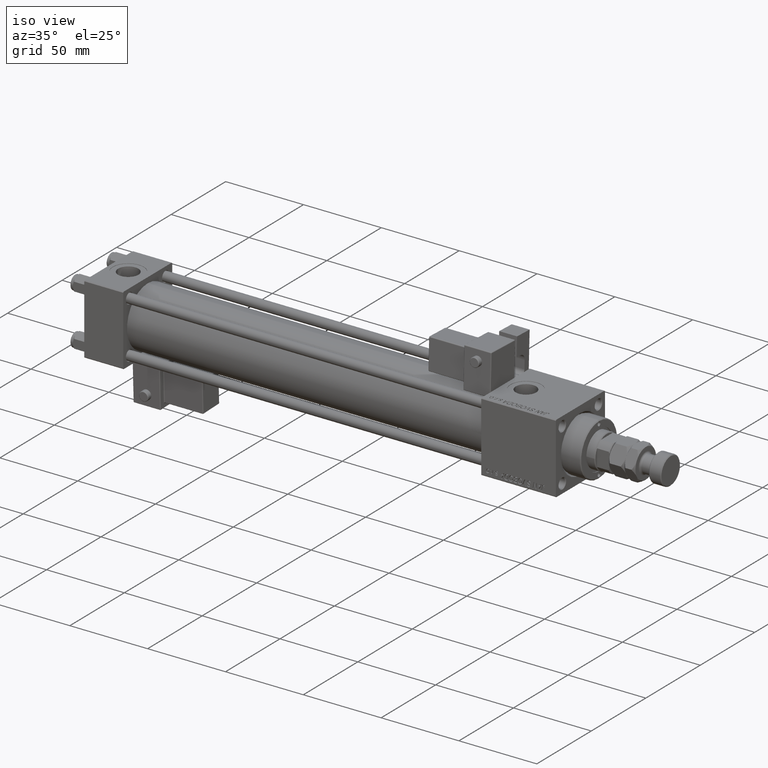
[diagram: clean part render]
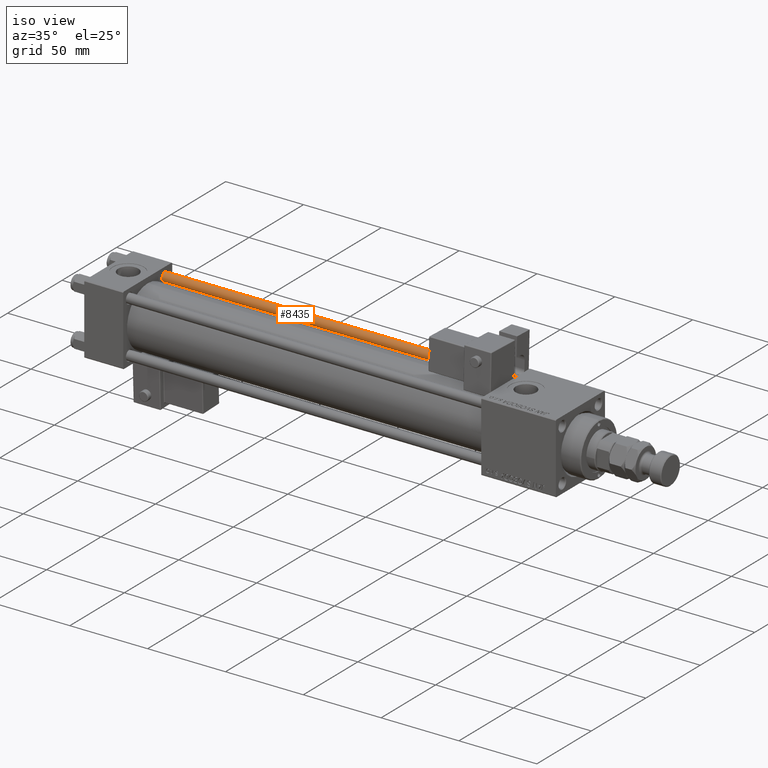
[diagram: same view with one face highlighted and labeled with its STEP entity id]
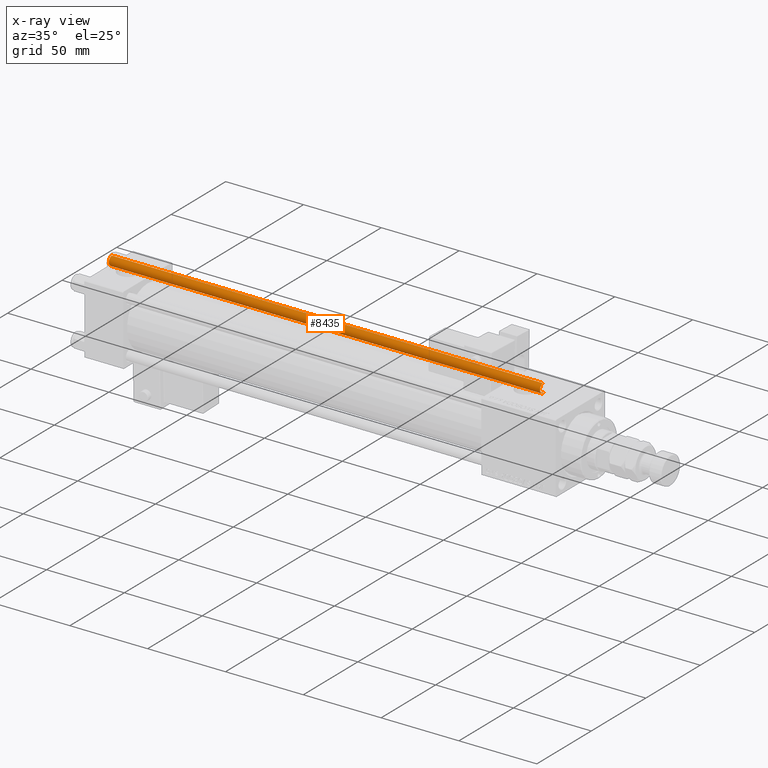
[diagram: x-ray of the same camera — body ghosted, the highlighted face saturated]
A machine part, iso view. The second image highlights one B-rep face of the part: STEP entity #8435.
The next image is the same camera in x-ray: the body ghosted, the highlighted face saturated — about 0% of this face is hidden behind the body in this view.
In plain terms, the highlighted cylindrical surface (edge-blend (fillet) strip) has radius 3 mm, axis along (-1, 0, 0).
Its self-contained STEP definition (entity closure, byte-faithful):
#2779 = CARTESIAN_POINT ( 'NONE',  ( 3.000000000000000444, 3.673940397442060361E-16, 278.0000000000000000 ) ) ;
#3094 = CIRCLE ( 'NONE', #36754, 3.000000000000000444 ) ;
#4512 = VERTEX_POINT ( 'NONE', #25430 ) ;
#5837 = ORIENTED_EDGE ( 'NONE', *, *, #48631, .T. ) ;
#6487 = DIRECTION ( 'NONE',  ( -0.000000000000000000, -0.000000000000000000, -1.000000000000000000 ) ) ;
#8188 = AXIS2_PLACEMENT_3D ( 'NONE', #20537, #38710, #47526 ) ;
#8236 = CIRCLE ( 'NONE', #8188, 3.000000000000000444 ) ;
#8435 = ADVANCED_FACE ( 'NONE', ( #34668 ), #9337, .T. ) ;
#9337 = CYLINDRICAL_SURFACE ( 'NONE', #22459, 3.000000000000000444 ) ;
#10171 = ORIENTED_EDGE ( 'NONE', *, *, #31366, .T. ) ;
#11652 = CARTESIAN_POINT ( 'NONE',  ( -3.000000000000000444, 0.000000000000000000, 277.5000000000000568 ) ) ;
#12324 = ORIENTED_EDGE ( 'NONE', *, *, #36817, .T. ) ;
#14152 = CARTESIAN_POINT ( 'NONE',  ( 0.000000000000000000, 0.000000000000000000, 278.0000000000000000 ) ) ;
#16067 = CARTESIAN_POINT ( 'NONE',  ( -3.000000000000000444, 0.000000000000000000, 278.0000000000000000 ) ) ;
#16203 = DIRECTION ( 'NONE',  ( 1.000000000000000000, 0.000000000000000000, 0.000000000000000000 ) ) ;
#20537 = CARTESIAN_POINT ( 'NONE',  ( 0.000000000000000000, 0.000000000000000000, 0.5000000000000559552 ) ) ;
#22291 = VERTEX_POINT ( 'NONE', #44543 ) ;
#22459 = AXIS2_PLACEMENT_3D ( 'NONE', #14152, #35788, #26701 ) ;
#25023 = CARTESIAN_POINT ( 'NONE',  ( -3.000000000000000444, 0.000000000000000000, 0.5000000000000559552 ) ) ;
#25430 = CARTESIAN_POINT ( 'NONE',  ( 3.000000000000000444, 3.673940397442060361E-16, 277.5000000000000568 ) ) ;
#26701 = DIRECTION ( 'NONE',  ( -1.000000000000000000, 0.000000000000000000, 0.000000000000000000 ) ) ;
#31366 = EDGE_CURVE ( 'NONE', #43539, #48638, #37695, .T. ) ;
#32701 = DIRECTION ( 'NONE',  ( 0.000000000000000000, 0.000000000000000000, -1.000000000000000000 ) ) ;
#34668 = FACE_OUTER_BOUND ( 'NONE', #47649, .T. ) ;
#35788 = DIRECTION ( 'NONE',  ( -0.000000000000000000, -0.000000000000000000, -1.000000000000000000 ) ) ;
#36754 = AXIS2_PLACEMENT_3D ( 'NONE', #54316, #32701, #16203 ) ;
#36817 = EDGE_CURVE ( 'NONE', #48638, #22291, #8236, .T. ) ;
#37695 = LINE ( 'NONE', #16067, #56278 ) ;
#38710 = DIRECTION ( 'NONE',  ( -0.000000000000000000, -0.000000000000000000, 1.000000000000000000 ) ) ;
#43539 = VERTEX_POINT ( 'NONE', #11652 ) ;
#44543 = CARTESIAN_POINT ( 'NONE',  ( 3.000000000000000444, 3.673940397442060361E-16, 0.5000000000000559552 ) ) ;
#46608 = LINE ( 'NONE', #2779, #49014 ) ;
#47526 = DIRECTION ( 'NONE',  ( 1.000000000000000000, 0.000000000000000000, 0.000000000000000000 ) ) ;
#47649 = EDGE_LOOP ( 'NONE', ( #55887, #5837, #10171, #12324 ) ) ;
#48631 = EDGE_CURVE ( 'NONE', #4512, #43539, #3094, .T. ) ;
#48638 = VERTEX_POINT ( 'NONE', #25023 ) ;
#49014 = VECTOR ( 'NONE', #6487, 1000.000000000000000 ) ;
#54316 = CARTESIAN_POINT ( 'NONE',  ( 0.000000000000000000, 0.000000000000000000, 277.5000000000000568 ) ) ;
#55027 = DIRECTION ( 'NONE',  ( -0.000000000000000000, -0.000000000000000000, -1.000000000000000000 ) ) ;
#55122 = EDGE_CURVE ( 'NONE', #4512, #22291, #46608, .T. ) ;
#55887 = ORIENTED_EDGE ( 'NONE', *, *, #55122, .F. ) ;
#56278 = VECTOR ( 'NONE', #55027, 1000.000000000000000 ) ;